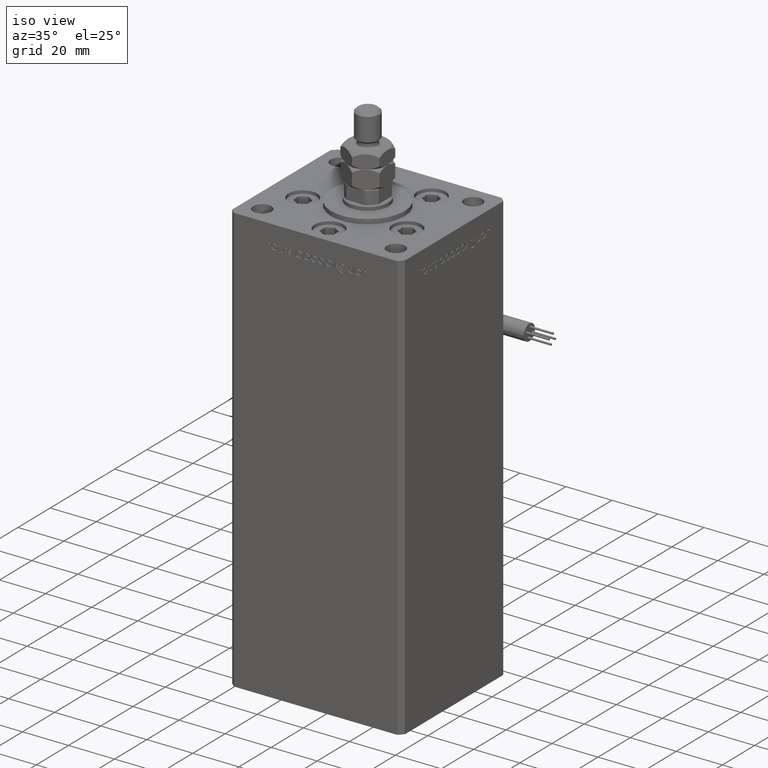
[diagram: clean part render]
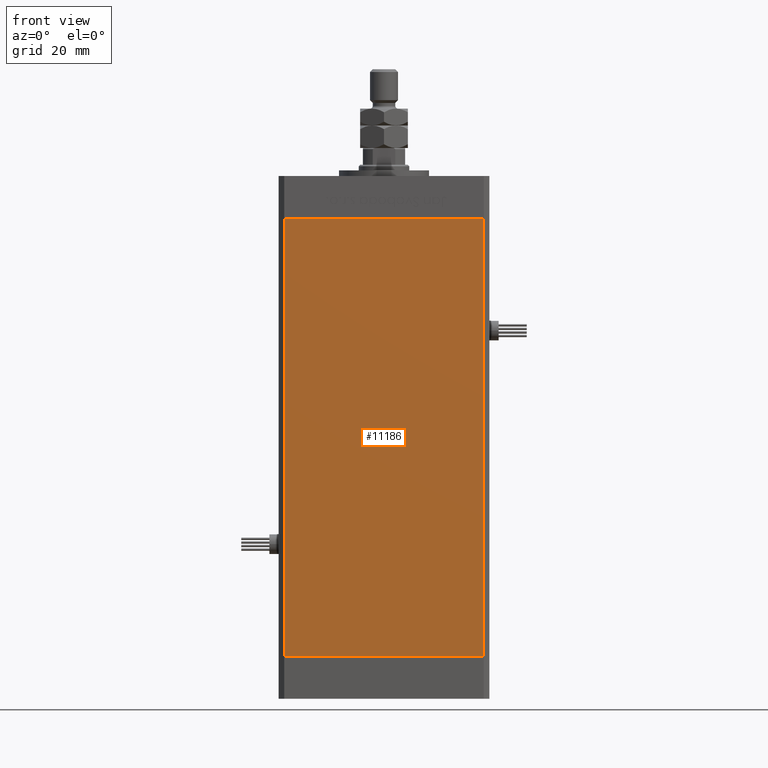
[diagram: tour spotlight — one face highlighted and labeled with its STEP entity id]
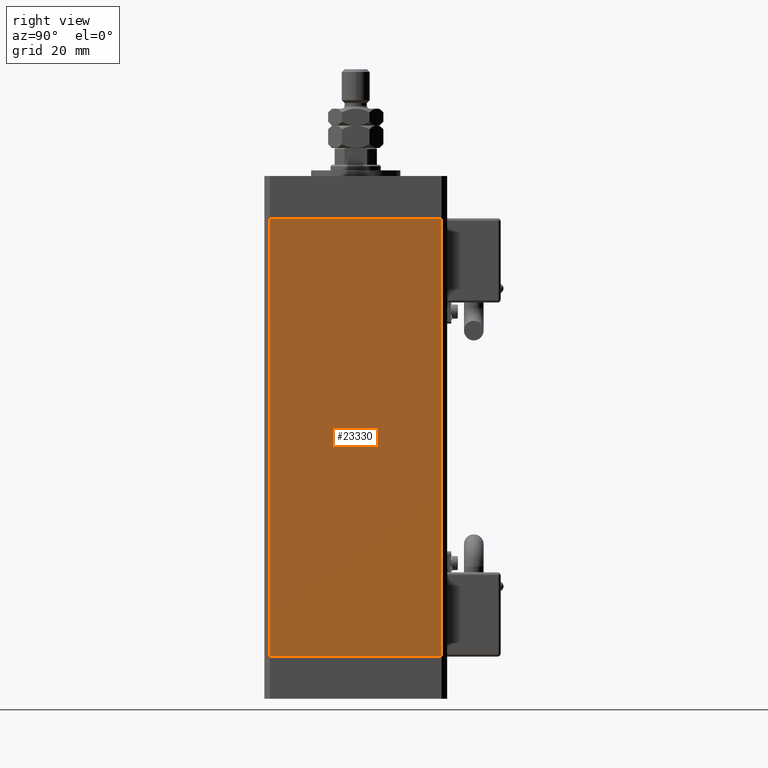
[diagram: tour spotlight — one face highlighted and labeled with its STEP entity id]
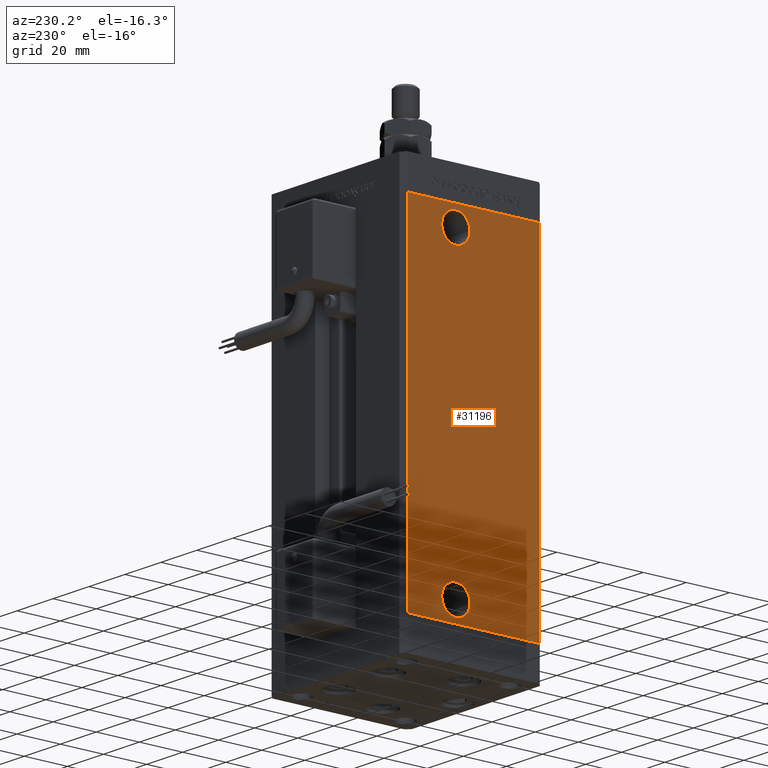
[diagram: tour spotlight — one face highlighted and labeled with its STEP entity id]
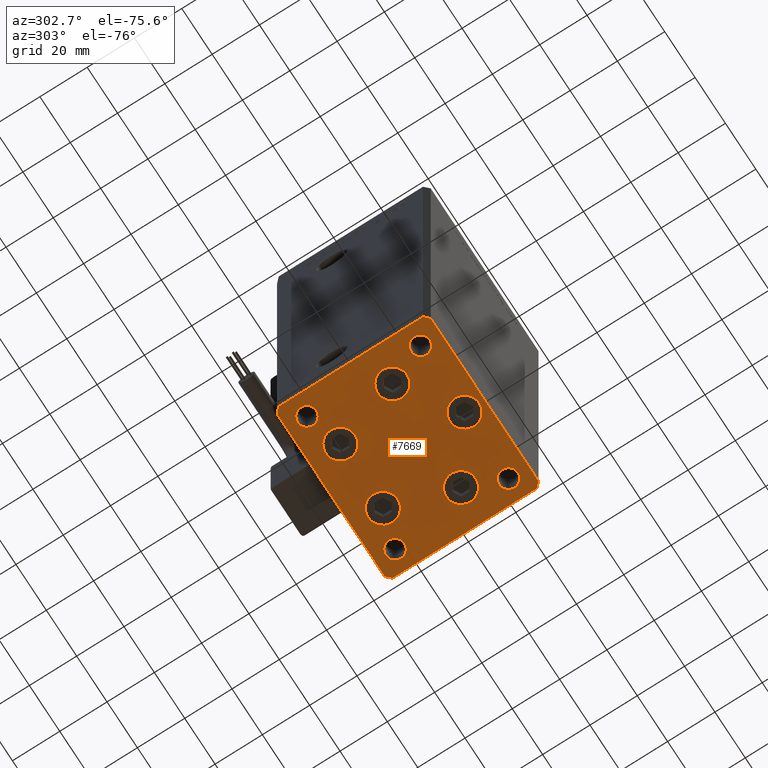
[diagram: tour spotlight — one face highlighted and labeled with its STEP entity id]
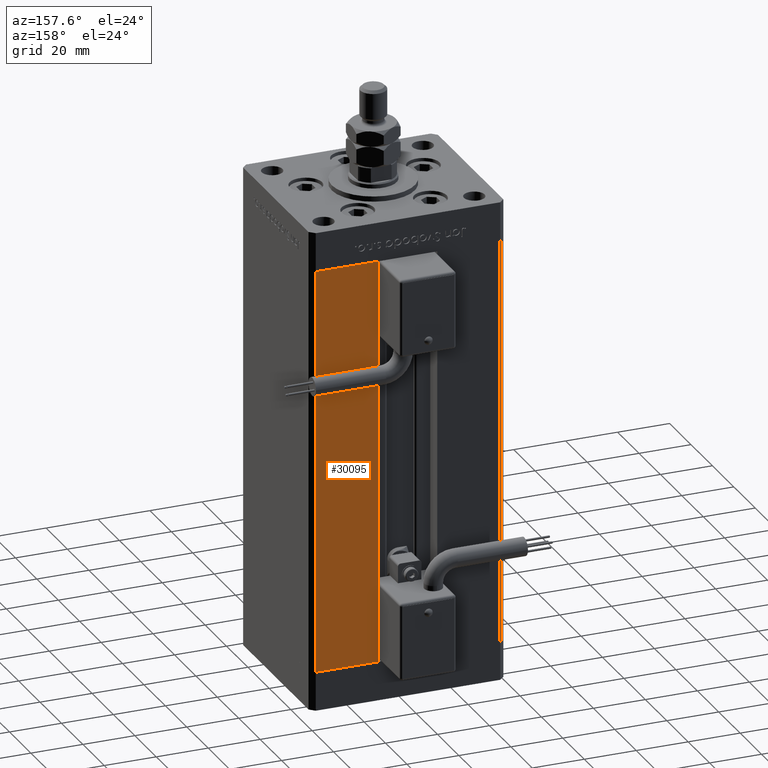
[diagram: tour spotlight — one face highlighted and labeled with its STEP entity id]
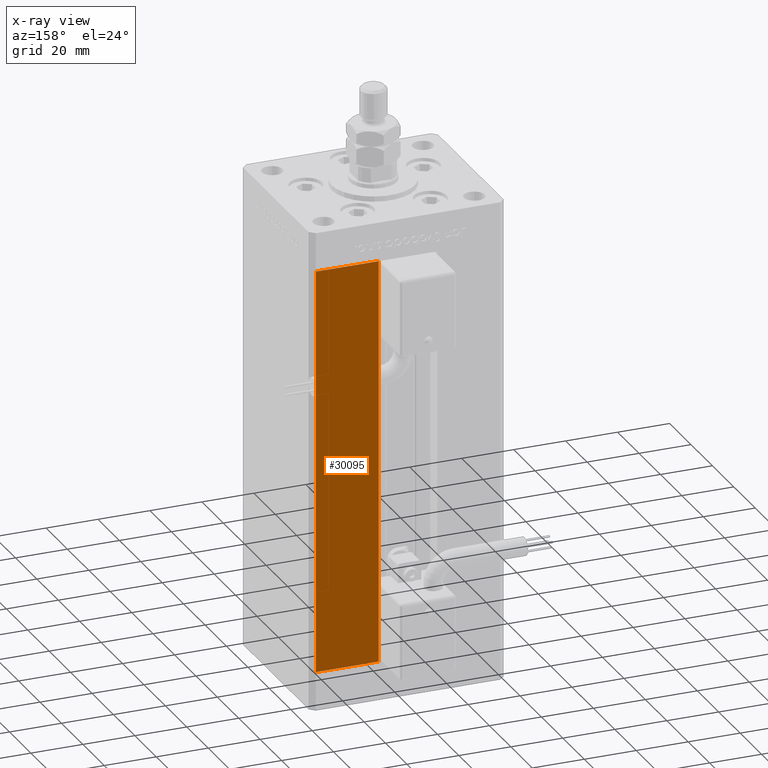
[diagram: x-ray of the same camera — body ghosted, this tour face saturated]
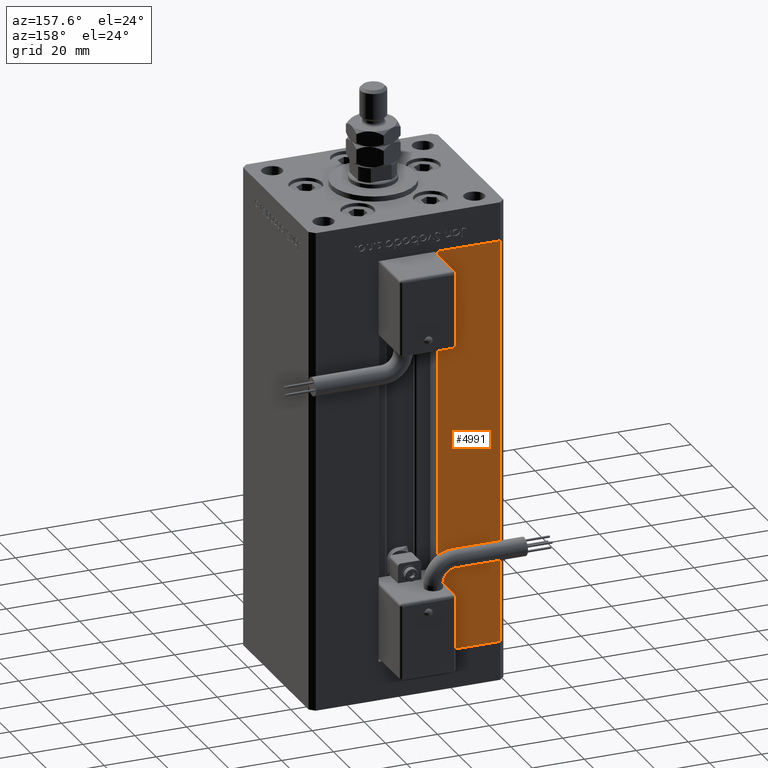
[diagram: tour spotlight — one face highlighted and labeled with its STEP entity id]
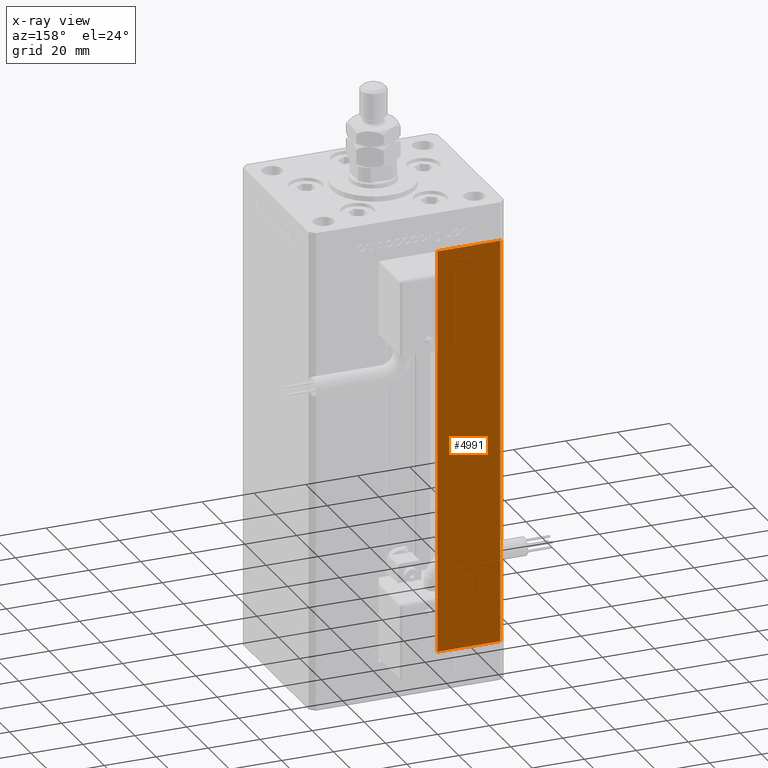
[diagram: x-ray of the same camera — body ghosted, this tour face saturated]
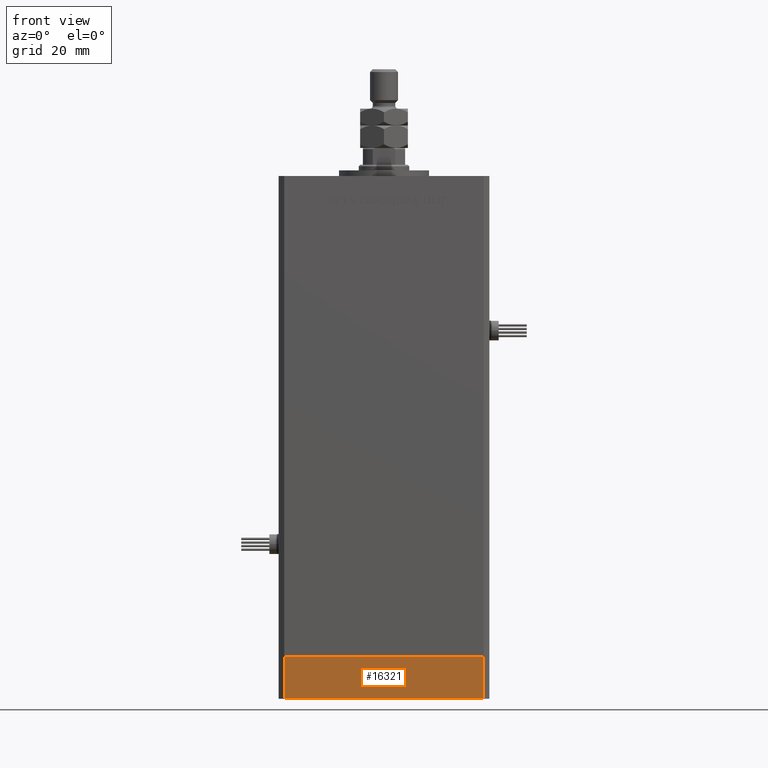
[diagram: tour spotlight — one face highlighted and labeled with its STEP entity id]
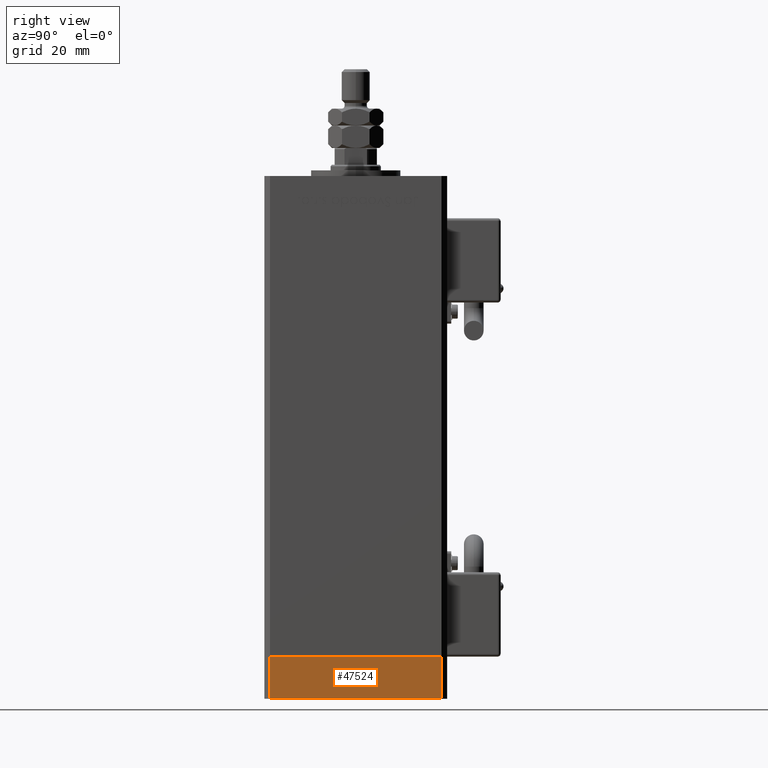
[diagram: tour spotlight — one face highlighted and labeled with its STEP entity id]
A machine part: a face-by-face anatomy tour. The part has 1436 B-rep faces; the first image is the clean iso view, then the 8 largest visible faces are spotlighted one at a time (largest first), each with its STEP entity span.

Face 1 — front view, entity #11186. In plain terms, the highlighted planar face has unit normal (0, 1, 0).
Definition (entity closure, byte-faithful):
#429 = VERTEX_POINT ( 'NONE', #12013 ) ;
#590 = PLANE ( 'NONE',  #22920 ) ;
#1198 = LINE ( 'NONE', #18722, #56778 ) ;
#4752 = DIRECTION ( 'NONE',  ( -0.000000000000000000, -0.000000000000000000, -1.000000000000000000 ) ) ;
#5762 = DIRECTION ( 'NONE',  ( 0.000000000000000000, -0.000000000000000000, 1.000000000000000000 ) ) ;
#5869 = VECTOR ( 'NONE', #11448, 1000.000000000000000 ) ;
#7815 = LINE ( 'NONE', #13252, #48460 ) ;
#11186 = ADVANCED_FACE ( 'NONE', ( #36196 ), #590, .F. ) ;
#11448 = DIRECTION ( 'NONE',  ( 1.000000000000000000, 0.000000000000000000, 0.000000000000000000 ) ) ;
#11451 = EDGE_LOOP ( 'NONE', ( #55361, #37061, #11911, #31844 ) ) ;
#11911 = ORIENTED_EDGE ( 'NONE', *, *, #24539, .F. ) ;
#12013 = CARTESIAN_POINT ( 'NONE',  ( -35.49999999999999289, -32.50000000000000000, 156.0000000000000000 ) ) ;
#12362 = CARTESIAN_POINT ( 'NONE',  ( 35.49999999999999289, -32.50000000000000000, 156.0000000000000000 ) ) ;
#13252 = CARTESIAN_POINT ( 'NONE',  ( -35.49999999999999289, -32.50000000000000000, 156.0000000000000000 ) ) ;
#13800 = CARTESIAN_POINT ( 'NONE',  ( -35.49999999999999289, -32.50000000000000000, 156.0000000000000000 ) ) ;
#14321 = VERTEX_POINT ( 'NONE', #36578 ) ;
#14348 = VERTEX_POINT ( 'NONE', #22811 ) ;
#14639 = EDGE_CURVE ( 'NONE', #14321, #14348, #1198, .T. ) ;
#16032 = CARTESIAN_POINT ( 'NONE',  ( -35.49999999999999289, -32.50000000000000000, 156.0000000000000000 ) ) ;
#18722 = CARTESIAN_POINT ( 'NONE',  ( -35.49999999999999289, -32.50000000000000000, 0.000000000000000000 ) ) ;
#22156 = DIRECTION ( 'NONE',  ( -0.000000000000000000, -0.000000000000000000, -1.000000000000000000 ) ) ;
#22742 = DIRECTION ( 'NONE',  ( 1.000000000000000000, 0.000000000000000000, 0.000000000000000000 ) ) ;
#22811 = CARTESIAN_POINT ( 'NONE',  ( 35.49999999999999289, -32.50000000000000000, 0.000000000000000000 ) ) ;
#22920 = AXIS2_PLACEMENT_3D ( 'NONE', #13800, #31322, #5762 ) ;
#24539 = EDGE_CURVE ( 'NONE', #429, #37645, #50755, .T. ) ;
#27229 = VECTOR ( 'NONE', #4752, 1000.000000000000000 ) ;
#31322 = DIRECTION ( 'NONE',  ( 0.000000000000000000, 1.000000000000000000, 0.000000000000000000 ) ) ;
#31844 = ORIENTED_EDGE ( 'NONE', *, *, #50758, .T. ) ;
#35735 = LINE ( 'NONE', #47810, #27229 ) ;
#36196 = FACE_OUTER_BOUND ( 'NONE', #11451, .T. ) ;
#36578 = CARTESIAN_POINT ( 'NONE',  ( -35.49999999999999289, -32.50000000000000000, 0.000000000000000000 ) ) ;
#37061 = ORIENTED_EDGE ( 'NONE', *, *, #48324, .F. ) ;
#37645 = VERTEX_POINT ( 'NONE', #12362 ) ;
#47810 = CARTESIAN_POINT ( 'NONE',  ( 35.49999999999999289, -32.50000000000000000, 156.0000000000000000 ) ) ;
#48324 = EDGE_CURVE ( 'NONE', #37645, #14348, #35735, .T. ) ;
#48460 = VECTOR ( 'NONE', #22156, 1000.000000000000000 ) ;
#50755 = LINE ( 'NONE', #16032, #5869 ) ;
#50758 = EDGE_CURVE ( 'NONE', #429, #14321, #7815, .T. ) ;
#55361 = ORIENTED_EDGE ( 'NONE', *, *, #14639, .T. ) ;
#56778 = VECTOR ( 'NONE', #22742, 1000.000000000000000 ) ;

Face 2 — right view, entity #23330. In plain terms, the highlighted planar face has unit normal (1, -0, 0).
Definition (entity closure, byte-faithful):
#76 = DIRECTION ( 'NONE',  ( 2.275047181608927644E-16, 1.000000000000000000, 0.000000000000000000 ) ) ;
#2645 = EDGE_CURVE ( 'NONE', #54825, #54986, #23394, .T. ) ;
#3247 = CARTESIAN_POINT ( 'NONE',  ( 37.50000000000000711, 30.50000000000000000, 156.0000000000000000 ) ) ;
#3537 = DIRECTION ( 'NONE',  ( 1.000000000000000000, -2.275047181608927644E-16, 0.000000000000000000 ) ) ;
#5111 = ORIENTED_EDGE ( 'NONE', *, *, #8133, .T. ) ;
#5362 = EDGE_CURVE ( 'NONE', #9115, #20351, #42670, .T. ) ;
#7980 = CARTESIAN_POINT ( 'NONE',  ( 37.50000000000000711, 30.50000000000000000, 156.0000000000000000 ) ) ;
#8133 = EDGE_CURVE ( 'NONE', #54986, #20351, #48835, .T. ) ;
#9115 = VERTEX_POINT ( 'NONE', #21034 ) ;
#9802 = CARTESIAN_POINT ( 'NONE',  ( 37.49999999999999289, -30.50000000000000000, 156.0000000000000000 ) ) ;
#9948 = CARTESIAN_POINT ( 'NONE',  ( 37.49999999999999289, -30.50000000000000000, 156.0000000000000000 ) ) ;
#13445 = ORIENTED_EDGE ( 'NONE', *, *, #21049, .F. ) ;
#13637 = DIRECTION ( 'NONE',  ( -2.275047181608927644E-16, -1.000000000000000000, 0.000000000000000000 ) ) ;
#17175 = CARTESIAN_POINT ( 'NONE',  ( 37.50000000000000711, 30.50000000000000000, 156.0000000000000000 ) ) ;
#17395 = CARTESIAN_POINT ( 'NONE',  ( 37.50000000000000711, 30.50000000000000000, 0.000000000000000000 ) ) ;
#18592 = ORIENTED_EDGE ( 'NONE', *, *, #2645, .T. ) ;
#20351 = VERTEX_POINT ( 'NONE', #39395 ) ;
#20485 = VECTOR ( 'NONE', #27032, 1000.000000000000000 ) ;
#21034 = CARTESIAN_POINT ( 'NONE',  ( 37.50000000000000711, 30.50000000000000000, 0.000000000000000000 ) ) ;
#21049 = EDGE_CURVE ( 'NONE', #54825, #9115, #51896, .T. ) ;
#22232 = VECTOR ( 'NONE', #13637, 1000.000000000000000 ) ;
#23330 = ADVANCED_FACE ( 'NONE', ( #39106 ), #25062, .T. ) ;
#23394 = LINE ( 'NONE', #27701, #22232 ) ;
#25062 = PLANE ( 'NONE',  #31440 ) ;
#27032 = DIRECTION ( 'NONE',  ( -0.000000000000000000, -0.000000000000000000, -1.000000000000000000 ) ) ;
#27701 = CARTESIAN_POINT ( 'NONE',  ( 37.50000000000000711, 30.50000000000000000, 156.0000000000000000 ) ) ;
#28932 = ORIENTED_EDGE ( 'NONE', *, *, #5362, .F. ) ;
#29323 = EDGE_LOOP ( 'NONE', ( #28932, #13445, #18592, #5111 ) ) ;
#30383 = DIRECTION ( 'NONE',  ( -0.000000000000000000, -0.000000000000000000, -1.000000000000000000 ) ) ;
#31440 = AXIS2_PLACEMENT_3D ( 'NONE', #3247, #3537, #76 ) ;
#34630 = DIRECTION ( 'NONE',  ( -2.275047181608927644E-16, -1.000000000000000000, 0.000000000000000000 ) ) ;
#39106 = FACE_OUTER_BOUND ( 'NONE', #29323, .T. ) ;
#39395 = CARTESIAN_POINT ( 'NONE',  ( 37.49999999999999289, -30.50000000000000000, 0.000000000000000000 ) ) ;
#42670 = LINE ( 'NONE', #17395, #54269 ) ;
#48835 = LINE ( 'NONE', #9802, #20485 ) ;
#49749 = VECTOR ( 'NONE', #30383, 1000.000000000000000 ) ;
#51896 = LINE ( 'NONE', #17175, #49749 ) ;
#54269 = VECTOR ( 'NONE', #34630, 1000.000000000000000 ) ;
#54825 = VERTEX_POINT ( 'NONE', #7980 ) ;
#54986 = VERTEX_POINT ( 'NONE', #9948 ) ;

Face 3 — auxiliary view, entity #31196. In plain terms, the highlighted planar face has unit normal (1, 0, 0).
Definition (entity closure, byte-faithful):
#1342 = AXIS2_PLACEMENT_3D ( 'NONE', #7660, #20292, #11397 ) ;
#1811 = VECTOR ( 'NONE', #29463, 1000.000000000000000 ) ;
#1994 = CARTESIAN_POINT ( 'NONE',  ( -37.50000000000000711, 30.50000000000000000, 0.000000000000000000 ) ) ;
#2286 = VERTEX_POINT ( 'NONE', #4544 ) ;
#2724 = AXIS2_PLACEMENT_3D ( 'NONE', #45016, #24064, #10858 ) ;
#2805 = AXIS2_PLACEMENT_3D ( 'NONE', #10754, #54642, #29111 ) ;
#3411 = ORIENTED_EDGE ( 'NONE', *, *, #52210, .F. ) ;
#3898 = EDGE_CURVE ( 'NONE', #24339, #4412, #52531, .T. ) ;
#4412 = VERTEX_POINT ( 'NONE', #8502 ) ;
#4544 = CARTESIAN_POINT ( 'NONE',  ( -37.49999999999999289, -30.50000000000000000, 156.0000000000000000 ) ) ;
#6637 = DIRECTION ( 'NONE',  ( -1.000000000000000000, -2.275047181608927644E-16, 0.000000000000000000 ) ) ;
#6799 = FACE_BOUND ( 'NONE', #8057, .T. ) ;
#7542 = LINE ( 'NONE', #47154, #29282 ) ;
#7660 = CARTESIAN_POINT ( 'NONE',  ( -37.50000000000000711, 30.50000000000000000, 156.0000000000000000 ) ) ;
#8057 = EDGE_LOOP ( 'NONE', ( #15413, #42565 ) ) ;
#8502 = CARTESIAN_POINT ( 'NONE',  ( -37.50000000000000000, 14.57999999999999652, 9.000000000000000000 ) ) ;
#9656 = CARTESIAN_POINT ( 'NONE',  ( -37.49999999999999289, -30.50000000000000000, 156.0000000000000000 ) ) ;
#9727 = VERTEX_POINT ( 'NONE', #47288 ) ;
#10385 = DIRECTION ( 'NONE',  ( 0.000000000000000000, -1.000000000000000000, 0.000000000000000000 ) ) ;
#10569 = ORIENTED_EDGE ( 'NONE', *, *, #3898, .F. ) ;
#10754 = CARTESIAN_POINT ( 'NONE',  ( -37.50000000000000000, 7.999999999999991118, 9.000000000000000000 ) ) ;
#10858 = DIRECTION ( 'NONE',  ( 0.000000000000000000, -1.000000000000000000, 0.000000000000000000 ) ) ;
#11217 = EDGE_CURVE ( 'NONE', #9727, #2286, #13524, .T. ) ;
#11397 = DIRECTION ( 'NONE',  ( -2.275047181608927644E-16, 1.000000000000000000, 0.000000000000000000 ) ) ;
#11631 = VERTEX_POINT ( 'NONE', #1994 ) ;
#12260 = PLANE ( 'NONE',  #1342 ) ;
#12263 = EDGE_CURVE ( 'NONE', #4412, #24339, #38539, .T. ) ;
#13524 = LINE ( 'NONE', #31044, #41223 ) ;
#13607 = ORIENTED_EDGE ( 'NONE', *, *, #15433, .T. ) ;
#14094 = CARTESIAN_POINT ( 'NONE',  ( -37.50000000000000000, 1.419999999999975948, 147.0000000000000000 ) ) ;
#15413 = ORIENTED_EDGE ( 'NONE', *, *, #29044, .F. ) ;
#15433 = EDGE_CURVE ( 'NONE', #9727, #11631, #33776, .T. ) ;
#16369 = EDGE_LOOP ( 'NONE', ( #10569, #45667 ) ) ;
#16899 = VERTEX_POINT ( 'NONE', #26696 ) ;
#18259 = VECTOR ( 'NONE', #44102, 1000.000000000000000 ) ;
#18603 = AXIS2_PLACEMENT_3D ( 'NONE', #48241, #51688, #38207 ) ;
#19164 = ORIENTED_EDGE ( 'NONE', *, *, #54253, .T. ) ;
#20292 = DIRECTION ( 'NONE',  ( 1.000000000000000000, 2.275047181608927644E-16, -0.000000000000000000 ) ) ;
#23898 = EDGE_LOOP ( 'NONE', ( #19164, #3411, #41750, #13607 ) ) ;
#24064 = DIRECTION ( 'NONE',  ( -1.000000000000000000, -2.275047181608927644E-16, 0.000000000000000000 ) ) ;
#24339 = VERTEX_POINT ( 'NONE', #45672 ) ;
#26696 = CARTESIAN_POINT ( 'NONE',  ( -37.49999999999999289, -30.50000000000000000, 0.000000000000000000 ) ) ;
#26733 = DIRECTION ( 'NONE',  ( 2.275047181608927644E-16, -1.000000000000000000, 0.000000000000000000 ) ) ;
#29044 = EDGE_CURVE ( 'NONE', #36775, #31861, #41579, .T. ) ;
#29111 = DIRECTION ( 'NONE',  ( 0.000000000000000000, -1.000000000000000000, 0.000000000000000000 ) ) ;
#29188 = FACE_OUTER_BOUND ( 'NONE', #23898, .T. ) ;
#29282 = VECTOR ( 'NONE', #51733, 1000.000000000000000 ) ;
#29463 = DIRECTION ( 'NONE',  ( -0.000000000000000000, -0.000000000000000000, -1.000000000000000000 ) ) ;
#31044 = CARTESIAN_POINT ( 'NONE',  ( -37.50000000000000711, 30.50000000000000000, 156.0000000000000000 ) ) ;
#31196 = ADVANCED_FACE ( 'NONE', ( #51561, #6799, #29188 ), #12260, .F. ) ;
#31861 = VERTEX_POINT ( 'NONE', #42478 ) ;
#32505 = AXIS2_PLACEMENT_3D ( 'NONE', #54274, #6637, #10385 ) ;
#33776 = LINE ( 'NONE', #51255, #1811 ) ;
#36775 = VERTEX_POINT ( 'NONE', #14094 ) ;
#38207 = DIRECTION ( 'NONE',  ( 0.000000000000000000, -1.000000000000000000, 0.000000000000000000 ) ) ;
#38539 = CIRCLE ( 'NONE', #2805, 6.580000000000003624 ) ;
#39789 = LINE ( 'NONE', #9656, #18259 ) ;
#41223 = VECTOR ( 'NONE', #26733, 1000.000000000000000 ) ;
#41579 = CIRCLE ( 'NONE', #32505, 6.580000000000015170 ) ;
#41750 = ORIENTED_EDGE ( 'NONE', *, *, #11217, .F. ) ;
#42478 = CARTESIAN_POINT ( 'NONE',  ( -37.50000000000000000, 14.58000000000000718, 147.0000000000000000 ) ) ;
#42565 = ORIENTED_EDGE ( 'NONE', *, *, #54684, .F. ) ;
#44102 = DIRECTION ( 'NONE',  ( -0.000000000000000000, -0.000000000000000000, -1.000000000000000000 ) ) ;
#45016 = CARTESIAN_POINT ( 'NONE',  ( -37.50000000000000000, 7.999999999999991118, 147.0000000000000000 ) ) ;
#45667 = ORIENTED_EDGE ( 'NONE', *, *, #12263, .F. ) ;
#45672 = CARTESIAN_POINT ( 'NONE',  ( -37.50000000000000000, 1.419999999999988161, 9.000000000000000000 ) ) ;
#47154 = CARTESIAN_POINT ( 'NONE',  ( -37.50000000000000711, 30.50000000000000000, 0.000000000000000000 ) ) ;
#47288 = CARTESIAN_POINT ( 'NONE',  ( -37.50000000000000711, 30.50000000000000000, 156.0000000000000000 ) ) ;
#48241 = CARTESIAN_POINT ( 'NONE',  ( -37.50000000000000000, 7.999999999999991118, 9.000000000000000000 ) ) ;
#51255 = CARTESIAN_POINT ( 'NONE',  ( -37.50000000000000711, 30.50000000000000000, 156.0000000000000000 ) ) ;
#51561 = FACE_BOUND ( 'NONE', #16369, .T. ) ;
#51688 = DIRECTION ( 'NONE',  ( -1.000000000000000000, -2.275047181608927644E-16, 0.000000000000000000 ) ) ;
#51733 = DIRECTION ( 'NONE',  ( 2.275047181608927644E-16, -1.000000000000000000, 0.000000000000000000 ) ) ;
#52210 = EDGE_CURVE ( 'NONE', #2286, #16899, #39789, .T. ) ;
#52531 = CIRCLE ( 'NONE', #18603, 6.580000000000003624 ) ;
#54253 = EDGE_CURVE ( 'NONE', #11631, #16899, #7542, .T. ) ;
#54274 = CARTESIAN_POINT ( 'NONE',  ( -37.50000000000000000, 7.999999999999991118, 147.0000000000000000 ) ) ;
#54642 = DIRECTION ( 'NONE',  ( -1.000000000000000000, -2.275047181608927644E-16, 0.000000000000000000 ) ) ;
#54684 = EDGE_CURVE ( 'NONE', #31861, #36775, #54975, .T. ) ;
#54975 = CIRCLE ( 'NONE', #2724, 6.580000000000015170 ) ;

Face 4 — auxiliary view, entity #7669. In plain terms, the highlighted planar face has unit normal (0, 0, -1).
Definition (entity closure, byte-faithful):
#242 = DIRECTION ( 'NONE',  ( 1.000000000000000000, 0.000000000000000000, 0.000000000000000000 ) ) ;
#556 = CIRCLE ( 'NONE', #50954, 4.000000000000003553 ) ;
#670 = AXIS2_PLACEMENT_3D ( 'NONE', #50111, #18847, #40655 ) ;
#685 = EDGE_CURVE ( 'NONE', #6928, #48066, #36803, .T. ) ;
#746 = CARTESIAN_POINT ( 'NONE',  ( 28.87741699796952233, -8.000000000000000000, 0.000000000000000000 ) ) ;
#857 = AXIS2_PLACEMENT_3D ( 'NONE', #29980, #34572, #30270 ) ;
#1623 = VERTEX_POINT ( 'NONE', #8771 ) ;
#1645 = DIRECTION ( 'NONE',  ( 1.000000000000000000, 9.773090005503140331E-17, 0.000000000000000000 ) ) ;
#2669 = ORIENTED_EDGE ( 'NONE', *, *, #53335, .T. ) ;
#2683 = CARTESIAN_POINT ( 'NONE',  ( 7.741068579633223479, 19.50000000000000000, 0.000000000000000000 ) ) ;
#2940 = LINE ( 'NONE', #28494, #49343 ) ;
#3102 = EDGE_LOOP ( 'NONE', ( #55472, #13795 ) ) ;
#3371 = FACE_BOUND ( 'NONE', #43838, .T. ) ;
#3637 = CIRCLE ( 'NONE', #47643, 4.000000000000003553 ) ;
#3657 = FACE_BOUND ( 'NONE', #48720, .T. ) ;
#3715 = VECTOR ( 'NONE', #36107, 1000.000000000000000 ) ;
#3948 = FACE_BOUND ( 'NONE', #16391, .T. ) ;
#4215 = CARTESIAN_POINT ( 'NONE',  ( 25.00000000000000711, 24.00000000000000711, 0.000000000000000000 ) ) ;
#4333 = VERTEX_POINT ( 'NONE', #6781 ) ;
#4588 = EDGE_LOOP ( 'NONE', ( #54042, #54401 ) ) ;
#4715 = VERTEX_POINT ( 'NONE', #47687 ) ;
#4910 = DIRECTION ( 'NONE',  ( 0.000000000000000000, -0.000000000000000000, -1.000000000000000000 ) ) ;
#4960 = CARTESIAN_POINT ( 'NONE',  ( 2.939152317953647500E-15, -24.00000000000000000, 0.000000000000000000 ) ) ;
#5390 = CARTESIAN_POINT ( 'NONE',  ( -35.49999999999998579, -32.50000000000001421, 0.000000000000000000 ) ) ;
#5973 = DIRECTION ( 'NONE',  ( 0.7071067811865474617, -0.7071067811865474617, 0.000000000000000000 ) ) ;
#5999 = DIRECTION ( 'NONE',  ( 1.000000000000000000, 0.000000000000000000, 0.000000000000000000 ) ) ;
#6049 = DIRECTION ( 'NONE',  ( 0.000000000000000000, -0.000000000000000000, -1.000000000000000000 ) ) ;
#6663 = EDGE_LOOP ( 'NONE', ( #43393, #53488, #34534, #7925, #48180, #19809, #43941, #23532 ) ) ;
#6781 = CARTESIAN_POINT ( 'NONE',  ( 33.00000000000001421, 24.00000000000000711, 0.000000000000000000 ) ) ;
#6928 = VERTEX_POINT ( 'NONE', #34792 ) ;
#7345 = AXIS2_PLACEMENT_3D ( 'NONE', #10261, #10823, #27481 ) ;
#7457 = LINE ( 'NONE', #20376, #26581 ) ;
#7669 = ADVANCED_FACE ( 'NONE', ( #26600, #3371, #7963, #43264, #12831, #3948, #47849, #3657, #30636, #21465 ), #8536, .T. ) ;
#7839 = CIRCLE ( 'NONE', #20667, 4.000000000000000000 ) ;
#7925 = ORIENTED_EDGE ( 'NONE', *, *, #33905, .T. ) ;
#7963 = FACE_BOUND ( 'NONE', #3102, .T. ) ;
#8295 = DIRECTION ( 'NONE',  ( 1.000000000000000000, 0.000000000000000000, 0.000000000000000000 ) ) ;
#8536 = PLANE ( 'NONE',  #48869 ) ;
#8630 = AXIS2_PLACEMENT_3D ( 'NONE', #33909, #51392, #55975 ) ;
#8771 = CARTESIAN_POINT ( 'NONE',  ( -7.741068579633227031, 19.49999999999999645, 0.000000000000000000 ) ) ;
#8860 = CIRCLE ( 'NONE', #24416, 6.250000000000000000 ) ;
#8888 = CIRCLE ( 'NONE', #16212, 6.250000000000001776 ) ;
#9710 = DIRECTION ( 'NONE',  ( 1.000000000000000000, 0.000000000000000000, 0.000000000000000000 ) ) ;
#9750 = CARTESIAN_POINT ( 'NONE',  ( -35.50000000000002842, 32.49999999999999289, 0.000000000000000000 ) ) ;
#10051 = CARTESIAN_POINT ( 'NONE',  ( -25.00000000000001066, -23.99999999999999289, 0.000000000000000000 ) ) ;
#10054 = AXIS2_PLACEMENT_3D ( 'NONE', #53399, #44512, #49670 ) ;
#10261 = CARTESIAN_POINT ( 'NONE',  ( -22.62741699796951877, -8.000000000000005329, 0.000000000000000000 ) ) ;
#10823 = DIRECTION ( 'NONE',  ( 0.000000000000000000, -0.000000000000000000, -1.000000000000000000 ) ) ;
#11878 = EDGE_CURVE ( 'NONE', #4715, #1623, #51349, .T. ) ;
#11910 = EDGE_CURVE ( 'NONE', #31978, #28876, #29358, .T. ) ;
#12068 = AXIS2_PLACEMENT_3D ( 'NONE', #4960, #34538, #30799 ) ;
#12819 = ORIENTED_EDGE ( 'NONE', *, *, #33737, .T. ) ;
#12831 = FACE_BOUND ( 'NONE', #18688, .T. ) ;
#12911 = CARTESIAN_POINT ( 'NONE',  ( -33.00000000000000711, -23.99999999999999289, 0.000000000000000000 ) ) ;
#13242 = VERTEX_POINT ( 'NONE', #45494 ) ;
#13324 = CARTESIAN_POINT ( 'NONE',  ( 16.37741699796951877, -8.000000000000000000, 0.000000000000000000 ) ) ;
#13372 = EDGE_CURVE ( 'NONE', #28876, #31978, #15533, .T. ) ;
#13389 = VERTEX_POINT ( 'NONE', #13324 ) ;
#13612 = ORIENTED_EDGE ( 'NONE', *, *, #34382, .F. ) ;
#13795 = ORIENTED_EDGE ( 'NONE', *, *, #46443, .T. ) ;
#13828 = EDGE_CURVE ( 'NONE', #1623, #4715, #32959, .T. ) ;
#14004 = CARTESIAN_POINT ( 'NONE',  ( 22.62741699796951877, -8.000000000000000000, 0.000000000000000000 ) ) ;
#14167 = CARTESIAN_POINT ( 'NONE',  ( -35.50000000000002842, 32.49999999999999289, 0.000000000000000000 ) ) ;
#14215 = CARTESIAN_POINT ( 'NONE',  ( -25.00000000000001421, 24.00000000000000711, 0.000000000000000000 ) ) ;
#14292 = CARTESIAN_POINT ( 'NONE',  ( -37.49999999999998579, -30.50000000000001421, 0.000000000000000000 ) ) ;
#14312 = CARTESIAN_POINT ( 'NONE',  ( 35.50000000000000711, -32.50000000000000711, 0.000000000000000000 ) ) ;
#14396 = VERTEX_POINT ( 'NONE', #2683 ) ;
#14576 = DIRECTION ( 'NONE',  ( 0.000000000000000000, -0.000000000000000000, -1.000000000000000000 ) ) ;
#14624 = CARTESIAN_POINT ( 'NONE',  ( -6.249999999999997335, -24.00000000000000000, 0.000000000000000000 ) ) ;
#14707 = EDGE_CURVE ( 'NONE', #34526, #37215, #33632, .T. ) ;
#14929 = ORIENTED_EDGE ( 'NONE', *, *, #13828, .T. ) ;
#14973 = DIRECTION ( 'NONE',  ( -1.000000000000000000, -1.954618001100629052E-16, 0.000000000000000000 ) ) ;
#15331 = DIRECTION ( 'NONE',  ( 1.000000000000000000, 0.000000000000000000, 0.000000000000000000 ) ) ;
#15489 = DIRECTION ( 'NONE',  ( -0.7071067811865482389, 0.7071067811865469066, 0.000000000000000000 ) ) ;
#15533 = CIRCLE ( 'NONE', #857, 6.250000000000001776 ) ;
#15759 = ORIENTED_EDGE ( 'NONE', *, *, #11910, .T. ) ;
#15818 = DIRECTION ( 'NONE',  ( -0.000000000000000000, 0.000000000000000000, 1.000000000000000000 ) ) ;
#15898 = CIRCLE ( 'NONE', #56215, 4.000000000000003553 ) ;
#16109 = EDGE_CURVE ( 'NONE', #36525, #21681, #18305, .T. ) ;
#16212 = AXIS2_PLACEMENT_3D ( 'NONE', #36484, #6049, #53968 ) ;
#16391 = EDGE_LOOP ( 'NONE', ( #13612, #23694 ) ) ;
#16536 = VERTEX_POINT ( 'NONE', #23966 ) ;
#16810 = AXIS2_PLACEMENT_3D ( 'NONE', #22041, #22591, #21763 ) ;
#16910 = DIRECTION ( 'NONE',  ( -1.478780668045802821E-15, 1.000000000000000000, 0.000000000000000000 ) ) ;
#18174 = VECTOR ( 'NONE', #1645, 1000.000000000000000 ) ;
#18305 = LINE ( 'NONE', #18593, #3715 ) ;
#18593 = CARTESIAN_POINT ( 'NONE',  ( -37.50000000000001421, 30.49999999999998579, 0.000000000000000000 ) ) ;
#18688 = EDGE_LOOP ( 'NONE', ( #15759, #41124 ) ) ;
#18847 = DIRECTION ( 'NONE',  ( -0.000000000000000000, 0.000000000000000000, 1.000000000000000000 ) ) ;
#19111 = VERTEX_POINT ( 'NONE', #34777 ) ;
#19757 = CARTESIAN_POINT ( 'NONE',  ( 29.00000000000001066, -23.99999999999999289, 0.000000000000000000 ) ) ;
#19809 = ORIENTED_EDGE ( 'NONE', *, *, #14707, .T. ) ;
#19875 = CARTESIAN_POINT ( 'NONE',  ( -37.50000000000001421, 30.49999999999998579, 0.000000000000000000 ) ) ;
#20020 = VECTOR ( 'NONE', #5973, 1000.000000000000114 ) ;
#20122 = CARTESIAN_POINT ( 'NONE',  ( 29.00000000000001066, 24.00000000000000711, 0.000000000000000000 ) ) ;
#20376 = CARTESIAN_POINT ( 'NONE',  ( 37.49999999999992184, 30.50000000000001066, 0.000000000000000000 ) ) ;
#20589 = DIRECTION ( 'NONE',  ( 1.000000000000000000, 0.000000000000000000, 0.000000000000000000 ) ) ;
#20667 = AXIS2_PLACEMENT_3D ( 'NONE', #36123, #14576, #9710 ) ;
#20958 = EDGE_CURVE ( 'NONE', #37215, #36525, #27830, .T. ) ;
#21465 = FACE_BOUND ( 'NONE', #4588, .T. ) ;
#21510 = CARTESIAN_POINT ( 'NONE',  ( -13.99106857963322703, 19.49999999999999645, 0.000000000000000000 ) ) ;
#21681 = VERTEX_POINT ( 'NONE', #45338 ) ;
#21734 = CIRCLE ( 'NONE', #54714, 3.999999999999996447 ) ;
#21763 = DIRECTION ( 'NONE',  ( 1.000000000000000000, 0.000000000000000000, 0.000000000000000000 ) ) ;
#21789 = DIRECTION ( 'NONE',  ( 0.000000000000000000, -0.000000000000000000, -1.000000000000000000 ) ) ;
#22041 = CARTESIAN_POINT ( 'NONE',  ( -29.00000000000001066, -23.99999999999999289, 0.000000000000000000 ) ) ;
#22591 = DIRECTION ( 'NONE',  ( 0.000000000000000000, -0.000000000000000000, -1.000000000000000000 ) ) ;
#22836 = VERTEX_POINT ( 'NONE', #14312 ) ;
#23532 = ORIENTED_EDGE ( 'NONE', *, *, #16109, .T. ) ;
#23694 = ORIENTED_EDGE ( 'NONE', *, *, #29106, .F. ) ;
#23756 = EDGE_CURVE ( 'NONE', #25592, #13242, #15898, .T. ) ;
#23966 = CARTESIAN_POINT ( 'NONE',  ( 37.50000000000001421, -30.50000000000000711, 0.000000000000000000 ) ) ;
#23994 = EDGE_CURVE ( 'NONE', #53919, #49273, #25998, .T. ) ;
#24024 = CARTESIAN_POINT ( 'NONE',  ( 20.24106857963322526, 19.50000000000000000, 0.000000000000000000 ) ) ;
#24416 = AXIS2_PLACEMENT_3D ( 'NONE', #24889, #42394, #20589 ) ;
#24463 = EDGE_CURVE ( 'NONE', #48066, #6928, #35179, .T. ) ;
#24718 = CARTESIAN_POINT ( 'NONE',  ( 35.49999999999992184, 32.50000000000000711, 0.000000000000000000 ) ) ;
#24764 = AXIS2_PLACEMENT_3D ( 'NONE', #21510, #21789, #8295 ) ;
#24889 = CARTESIAN_POINT ( 'NONE',  ( 13.99106857963322348, 19.50000000000000000, 0.000000000000000000 ) ) ;
#25170 = EDGE_LOOP ( 'NONE', ( #33114, #46923 ) ) ;
#25340 = VECTOR ( 'NONE', #16910, 1000.000000000000000 ) ;
#25592 = VERTEX_POINT ( 'NONE', #33767 ) ;
#25998 = CIRCLE ( 'NONE', #16810, 4.000000000000000000 ) ;
#26047 = DIRECTION ( 'NONE',  ( -0.000000000000000000, 0.000000000000000000, 1.000000000000000000 ) ) ;
#26581 = VECTOR ( 'NONE', #15489, 999.9999999999998863 ) ;
#26600 = FACE_BOUND ( 'NONE', #41473, .T. ) ;
#26865 = VERTEX_POINT ( 'NONE', #24024 ) ;
#27122 = AXIS2_PLACEMENT_3D ( 'NONE', #14004, #39838, #242 ) ;
#27255 = DIRECTION ( 'NONE',  ( -0.7071067811865426878, -0.7071067811865524577, 0.000000000000000000 ) ) ;
#27481 = DIRECTION ( 'NONE',  ( 1.000000000000000000, 0.000000000000000000, 0.000000000000000000 ) ) ;
#27830 = LINE ( 'NONE', #9750, #39631 ) ;
#28265 = DIRECTION ( 'NONE',  ( -0.000000000000000000, 0.000000000000000000, 1.000000000000000000 ) ) ;
#28494 = CARTESIAN_POINT ( 'NONE',  ( 35.50000000000000711, -32.50000000000000711, 0.000000000000000000 ) ) ;
#28876 = VERTEX_POINT ( 'NONE', #38833 ) ;
#29106 = EDGE_CURVE ( 'NONE', #35066, #4333, #38886, .T. ) ;
#29125 = DIRECTION ( 'NONE',  ( 1.000000000000000000, 0.000000000000000000, 0.000000000000000000 ) ) ;
#29358 = CIRCLE ( 'NONE', #7345, 6.250000000000001776 ) ;
#29928 = AXIS2_PLACEMENT_3D ( 'NONE', #44216, #4910, #49356 ) ;
#29980 = CARTESIAN_POINT ( 'NONE',  ( -22.62741699796951877, -8.000000000000005329, 0.000000000000000000 ) ) ;
#30159 = VERTEX_POINT ( 'NONE', #38493 ) ;
#30270 = DIRECTION ( 'NONE',  ( 1.000000000000000000, 0.000000000000000000, 0.000000000000000000 ) ) ;
#30636 = FACE_OUTER_BOUND ( 'NONE', #6663, .T. ) ;
#30799 = DIRECTION ( 'NONE',  ( 1.000000000000000000, 0.000000000000000000, 0.000000000000000000 ) ) ;
#31067 = CARTESIAN_POINT ( 'NONE',  ( -35.49999999999998579, -32.50000000000001421, 0.000000000000000000 ) ) ;
#31919 = EDGE_CURVE ( 'NONE', #49273, #53919, #7839, .T. ) ;
#31978 = VERTEX_POINT ( 'NONE', #44713 ) ;
#32018 = CARTESIAN_POINT ( 'NONE',  ( 29.00000000000001066, 24.00000000000000711, 0.000000000000000000 ) ) ;
#32807 = DIRECTION ( 'NONE',  ( 1.000000000000000000, 0.000000000000000000, 0.000000000000000000 ) ) ;
#32959 = CIRCLE ( 'NONE', #10054, 6.250000000000000000 ) ;
#33114 = ORIENTED_EDGE ( 'NONE', *, *, #24463, .T. ) ;
#33632 = LINE ( 'NONE', #24718, #53144 ) ;
#33683 = ORIENTED_EDGE ( 'NONE', *, *, #11878, .T. ) ;
#33728 = CARTESIAN_POINT ( 'NONE',  ( -29.00000000000001066, 24.00000000000000711, 0.000000000000000000 ) ) ;
#33737 = EDGE_CURVE ( 'NONE', #26865, #14396, #37244, .T. ) ;
#33767 = CARTESIAN_POINT ( 'NONE',  ( 25.00000000000000711, -23.99999999999999289, 0.000000000000000000 ) ) ;
#33905 = EDGE_CURVE ( 'NONE', #16536, #30159, #52191, .T. ) ;
#33909 = CARTESIAN_POINT ( 'NONE',  ( 2.939152317953647500E-15, -24.00000000000000000, 0.000000000000000000 ) ) ;
#34382 = EDGE_CURVE ( 'NONE', #4333, #35066, #556, .T. ) ;
#34526 = VERTEX_POINT ( 'NONE', #45061 ) ;
#34534 = ORIENTED_EDGE ( 'NONE', *, *, #51506, .T. ) ;
#34538 = DIRECTION ( 'NONE',  ( 0.000000000000000000, -0.000000000000000000, -1.000000000000000000 ) ) ;
#34572 = DIRECTION ( 'NONE',  ( 0.000000000000000000, -0.000000000000000000, -1.000000000000000000 ) ) ;
#34777 = CARTESIAN_POINT ( 'NONE',  ( -33.00000000000000711, 24.00000000000000711, 0.000000000000000000 ) ) ;
#34792 = CARTESIAN_POINT ( 'NONE',  ( 6.250000000000002665, -24.00000000000000000, 0.000000000000000000 ) ) ;
#34958 = EDGE_CURVE ( 'NONE', #13389, #52215, #51868, .T. ) ;
#35066 = VERTEX_POINT ( 'NONE', #4215 ) ;
#35105 = EDGE_CURVE ( 'NONE', #14396, #26865, #8860, .T. ) ;
#35179 = CIRCLE ( 'NONE', #8630, 6.250000000000000000 ) ;
#36107 = DIRECTION ( 'NONE',  ( 4.550094363217855288E-16, -1.000000000000000000, 0.000000000000000000 ) ) ;
#36123 = CARTESIAN_POINT ( 'NONE',  ( -29.00000000000001066, -23.99999999999999289, 0.000000000000000000 ) ) ;
#36398 = EDGE_CURVE ( 'NONE', #50337, #19111, #21734, .T. ) ;
#36484 = CARTESIAN_POINT ( 'NONE',  ( 22.62741699796951877, -8.000000000000000000, 0.000000000000000000 ) ) ;
#36525 = VERTEX_POINT ( 'NONE', #19875 ) ;
#36803 = CIRCLE ( 'NONE', #12068, 6.250000000000000000 ) ;
#36837 = CARTESIAN_POINT ( 'NONE',  ( 29.00000000000001066, -23.99999999999999289, 0.000000000000000000 ) ) ;
#37215 = VERTEX_POINT ( 'NONE', #14167 ) ;
#37244 = CIRCLE ( 'NONE', #29928, 6.250000000000000000 ) ;
#37550 = DIRECTION ( 'NONE',  ( 0.000000000000000000, -0.000000000000000000, -1.000000000000000000 ) ) ;
#38445 = VERTEX_POINT ( 'NONE', #31067 ) ;
#38493 = CARTESIAN_POINT ( 'NONE',  ( 37.49999999999992184, 30.50000000000001066, 0.000000000000000000 ) ) ;
#38833 = CARTESIAN_POINT ( 'NONE',  ( -16.37741699796951877, -8.000000000000005329, 0.000000000000000000 ) ) ;
#38886 = CIRCLE ( 'NONE', #39811, 4.000000000000003553 ) ;
#39631 = VECTOR ( 'NONE', #27255, 1000.000000000000000 ) ;
#39811 = AXIS2_PLACEMENT_3D ( 'NONE', #20122, #15818, #50825 ) ;
#39838 = DIRECTION ( 'NONE',  ( 0.000000000000000000, -0.000000000000000000, -1.000000000000000000 ) ) ;
#40655 = DIRECTION ( 'NONE',  ( 1.000000000000000000, 0.000000000000000000, 0.000000000000000000 ) ) ;
#41124 = ORIENTED_EDGE ( 'NONE', *, *, #13372, .T. ) ;
#41473 = EDGE_LOOP ( 'NONE', ( #33683, #14929 ) ) ;
#42340 = ORIENTED_EDGE ( 'NONE', *, *, #35105, .T. ) ;
#42394 = DIRECTION ( 'NONE',  ( 0.000000000000000000, -0.000000000000000000, -1.000000000000000000 ) ) ;
#43264 = FACE_BOUND ( 'NONE', #25170, .T. ) ;
#43393 = ORIENTED_EDGE ( 'NONE', *, *, #51129, .T. ) ;
#43469 = DIRECTION ( 'NONE',  ( -0.000000000000000000, 0.000000000000000000, 1.000000000000000000 ) ) ;
#43823 = DIRECTION ( 'NONE',  ( 1.000000000000000000, 0.000000000000000000, 0.000000000000000000 ) ) ;
#43838 = EDGE_LOOP ( 'NONE', ( #42340, #12819 ) ) ;
#43941 = ORIENTED_EDGE ( 'NONE', *, *, #20958, .T. ) ;
#44216 = CARTESIAN_POINT ( 'NONE',  ( 13.99106857963322348, 19.50000000000000000, 0.000000000000000000 ) ) ;
#44512 = DIRECTION ( 'NONE',  ( 0.000000000000000000, -0.000000000000000000, -1.000000000000000000 ) ) ;
#44556 = ORIENTED_EDGE ( 'NONE', *, *, #47247, .F. ) ;
#44700 = LINE ( 'NONE', #5390, #18174 ) ;
#44713 = CARTESIAN_POINT ( 'NONE',  ( -28.87741699796952233, -8.000000000000005329, 0.000000000000000000 ) ) ;
#45061 = CARTESIAN_POINT ( 'NONE',  ( 35.49999999999992184, 32.50000000000000711, 0.000000000000000000 ) ) ;
#45338 = CARTESIAN_POINT ( 'NONE',  ( -37.49999999999998579, -30.50000000000001421, 0.000000000000000000 ) ) ;
#45494 = CARTESIAN_POINT ( 'NONE',  ( 33.00000000000001421, -23.99999999999999289, 0.000000000000000000 ) ) ;
#46443 = EDGE_CURVE ( 'NONE', #52215, #13389, #8888, .T. ) ;
#46636 = ORIENTED_EDGE ( 'NONE', *, *, #36398, .F. ) ;
#46923 = ORIENTED_EDGE ( 'NONE', *, *, #685, .T. ) ;
#47247 = EDGE_CURVE ( 'NONE', #19111, #50337, #55654, .T. ) ;
#47612 = CARTESIAN_POINT ( 'NONE',  ( 37.50000000000001421, -30.50000000000000711, 0.000000000000000000 ) ) ;
#47643 = AXIS2_PLACEMENT_3D ( 'NONE', #36837, #50016, #32807 ) ;
#47687 = CARTESIAN_POINT ( 'NONE',  ( -20.24106857963322881, 19.49999999999999645, 0.000000000000000000 ) ) ;
#47849 = FACE_BOUND ( 'NONE', #56351, .T. ) ;
#48066 = VERTEX_POINT ( 'NONE', #14624 ) ;
#48142 = CARTESIAN_POINT ( 'NONE',  ( 0.000000000000000000, 0.000000000000000000, 0.000000000000000000 ) ) ;
#48180 = ORIENTED_EDGE ( 'NONE', *, *, #55245, .T. ) ;
#48720 = EDGE_LOOP ( 'NONE', ( #46636, #44556 ) ) ;
#48869 = AXIS2_PLACEMENT_3D ( 'NONE', #48142, #26047, #43823 ) ;
#49273 = VERTEX_POINT ( 'NONE', #10051 ) ;
#49343 = VECTOR ( 'NONE', #55732, 1000.000000000000000 ) ;
#49356 = DIRECTION ( 'NONE',  ( 1.000000000000000000, 0.000000000000000000, 0.000000000000000000 ) ) ;
#49568 = EDGE_CURVE ( 'NONE', #38445, #22836, #44700, .T. ) ;
#49670 = DIRECTION ( 'NONE',  ( 1.000000000000000000, 0.000000000000000000, 0.000000000000000000 ) ) ;
#50016 = DIRECTION ( 'NONE',  ( 0.000000000000000000, -0.000000000000000000, -1.000000000000000000 ) ) ;
#50111 = CARTESIAN_POINT ( 'NONE',  ( -29.00000000000001066, 24.00000000000000711, 0.000000000000000000 ) ) ;
#50337 = VERTEX_POINT ( 'NONE', #14215 ) ;
#50825 = DIRECTION ( 'NONE',  ( 1.000000000000000000, 0.000000000000000000, 0.000000000000000000 ) ) ;
#50954 = AXIS2_PLACEMENT_3D ( 'NONE', #32018, #28265, #15331 ) ;
#51129 = EDGE_CURVE ( 'NONE', #21681, #38445, #53322, .T. ) ;
#51349 = CIRCLE ( 'NONE', #24764, 6.250000000000000000 ) ;
#51392 = DIRECTION ( 'NONE',  ( 0.000000000000000000, -0.000000000000000000, -1.000000000000000000 ) ) ;
#51506 = EDGE_CURVE ( 'NONE', #22836, #16536, #2940, .T. ) ;
#51868 = CIRCLE ( 'NONE', #27122, 6.250000000000001776 ) ;
#52107 = ORIENTED_EDGE ( 'NONE', *, *, #23756, .T. ) ;
#52191 = LINE ( 'NONE', #47612, #25340 ) ;
#52215 = VERTEX_POINT ( 'NONE', #746 ) ;
#53144 = VECTOR ( 'NONE', #14973, 1000.000000000000000 ) ;
#53322 = LINE ( 'NONE', #14292, #20020 ) ;
#53335 = EDGE_CURVE ( 'NONE', #13242, #25592, #3637, .T. ) ;
#53399 = CARTESIAN_POINT ( 'NONE',  ( -13.99106857963322703, 19.49999999999999645, 0.000000000000000000 ) ) ;
#53488 = ORIENTED_EDGE ( 'NONE', *, *, #49568, .T. ) ;
#53919 = VERTEX_POINT ( 'NONE', #12911 ) ;
#53968 = DIRECTION ( 'NONE',  ( 1.000000000000000000, 0.000000000000000000, 0.000000000000000000 ) ) ;
#54042 = ORIENTED_EDGE ( 'NONE', *, *, #31919, .T. ) ;
#54401 = ORIENTED_EDGE ( 'NONE', *, *, #23994, .T. ) ;
#54714 = AXIS2_PLACEMENT_3D ( 'NONE', #33728, #43469, #29125 ) ;
#55245 = EDGE_CURVE ( 'NONE', #30159, #34526, #7457, .T. ) ;
#55472 = ORIENTED_EDGE ( 'NONE', *, *, #34958, .T. ) ;
#55654 = CIRCLE ( 'NONE', #670, 3.999999999999996447 ) ;
#55732 = DIRECTION ( 'NONE',  ( 0.7071067811865487940, 0.7071067811865463515, 0.000000000000000000 ) ) ;
#55975 = DIRECTION ( 'NONE',  ( 1.000000000000000000, 0.000000000000000000, 0.000000000000000000 ) ) ;
#56215 = AXIS2_PLACEMENT_3D ( 'NONE', #19757, #37550, #5999 ) ;
#56351 = EDGE_LOOP ( 'NONE', ( #2669, #52107 ) ) ;

Face 5 — auxiliary view, entity #30095. An x-ray twin of the same camera follows (body ghosted, this face saturated) — the face is partly hidden behind the body. In plain terms, the highlighted planar face has unit normal (0, -1, 0).
Definition (entity closure, byte-faithful):
#291 = VECTOR ( 'NONE', #53902, 1000.000000000000000 ) ;
#967 = EDGE_CURVE ( 'NONE', #35347, #1055, #37627, .T. ) ;
#1030 = CARTESIAN_POINT ( 'NONE',  ( 11.25000000000000178, 32.49999999999999289, 0.000000000000000000 ) ) ;
#1055 = VERTEX_POINT ( 'NONE', #45604 ) ;
#1307 = AXIS2_PLACEMENT_3D ( 'NONE', #16685, #16396, #47398 ) ;
#4061 = PLANE ( 'NONE',  #1307 ) ;
#5158 = EDGE_CURVE ( 'NONE', #14527, #44812, #22068, .T. ) ;
#5707 = LINE ( 'NONE', #7618, #291 ) ;
#6635 = CARTESIAN_POINT ( 'NONE',  ( -11.25000000000000178, 32.49999999999999289, 0.000000000000000000 ) ) ;
#7618 = CARTESIAN_POINT ( 'NONE',  ( 35.50000000000000000, 32.49999999999999289, 156.0000000000000000 ) ) ;
#7743 = EDGE_CURVE ( 'NONE', #1055, #14527, #18831, .T. ) ;
#12090 = DIRECTION ( 'NONE',  ( -1.000000000000000000, 0.000000000000000000, 0.000000000000000000 ) ) ;
#14527 = VERTEX_POINT ( 'NONE', #35122 ) ;
#14950 = VECTOR ( 'NONE', #36347, 1000.000000000000000 ) ;
#15122 = EDGE_LOOP ( 'NONE', ( #30621, #33003, #55222, #42761 ) ) ;
#15319 = FACE_OUTER_BOUND ( 'NONE', #15122, .T. ) ;
#16396 = DIRECTION ( 'NONE',  ( 0.000000000000000000, -1.000000000000000000, 0.000000000000000000 ) ) ;
#16685 = CARTESIAN_POINT ( 'NONE',  ( -11.25000000000000178, 32.49999999999999289, 156.0000000000000000 ) ) ;
#18831 = LINE ( 'NONE', #1030, #14950 ) ;
#22068 = LINE ( 'NONE', #44696, #42312 ) ;
#22345 = DIRECTION ( 'NONE',  ( 1.000000000000000000, 0.000000000000000000, 0.000000000000000000 ) ) ;
#23087 = EDGE_CURVE ( 'NONE', #44812, #35347, #5707, .T. ) ;
#30095 = ADVANCED_FACE ( 'NONE', ( #15319 ), #4061, .F. ) ;
#30621 = ORIENTED_EDGE ( 'NONE', *, *, #967, .T. ) ;
#33003 = ORIENTED_EDGE ( 'NONE', *, *, #7743, .T. ) ;
#34434 = CARTESIAN_POINT ( 'NONE',  ( 35.50000000000000000, 32.49999999999999289, 156.0000000000000000 ) ) ;
#35122 = CARTESIAN_POINT ( 'NONE',  ( 11.24999999999999467, 32.49999999999999289, 156.0000000000000000 ) ) ;
#35347 = VERTEX_POINT ( 'NONE', #56071 ) ;
#36347 = DIRECTION ( 'NONE',  ( -0.000000000000000000, -0.000000000000000000, 1.000000000000000000 ) ) ;
#37627 = LINE ( 'NONE', #6635, #52449 ) ;
#42312 = VECTOR ( 'NONE', #22345, 1000.000000000000000 ) ;
#42761 = ORIENTED_EDGE ( 'NONE', *, *, #23087, .T. ) ;
#44696 = CARTESIAN_POINT ( 'NONE',  ( -11.25000000000000178, 32.49999999999999289, 156.0000000000000000 ) ) ;
#44812 = VERTEX_POINT ( 'NONE', #34434 ) ;
#45604 = CARTESIAN_POINT ( 'NONE',  ( 11.25000000000000178, 32.49999999999999289, 0.000000000000000000 ) ) ;
#47398 = DIRECTION ( 'NONE',  ( 0.000000000000000000, -0.000000000000000000, -1.000000000000000000 ) ) ;
#52449 = VECTOR ( 'NONE', #12090, 1000.000000000000000 ) ;
#53902 = DIRECTION ( 'NONE',  ( -0.000000000000000000, -0.000000000000000000, -1.000000000000000000 ) ) ;
#55222 = ORIENTED_EDGE ( 'NONE', *, *, #5158, .T. ) ;
#56071 = CARTESIAN_POINT ( 'NONE',  ( 35.50000000000000000, 32.49999999999999289, 0.000000000000000000 ) ) ;

Face 6 — auxiliary view, entity #4991. An x-ray twin of the same camera follows (body ghosted, this face saturated) — the face is partly hidden behind the body. In plain terms, the highlighted planar face has unit normal (0, -1, 0).
Definition (entity closure, byte-faithful):
#937 = VECTOR ( 'NONE', #34566, 1000.000000000000000 ) ;
#1913 = VERTEX_POINT ( 'NONE', #4337 ) ;
#2408 = DIRECTION ( 'NONE',  ( -0.000000000000000000, -0.000000000000000000, -1.000000000000000000 ) ) ;
#2478 = EDGE_CURVE ( 'NONE', #16543, #32434, #30604, .T. ) ;
#4337 = CARTESIAN_POINT ( 'NONE',  ( -35.50000000000000000, 32.49999999999999289, 156.0000000000000000 ) ) ;
#4991 = ADVANCED_FACE ( 'NONE', ( #25806 ), #47050, .F. ) ;
#9340 = AXIS2_PLACEMENT_3D ( 'NONE', #43867, #47614, #43593 ) ;
#10185 = CARTESIAN_POINT ( 'NONE',  ( -35.50000000000000000, 32.49999999999999289, 156.0000000000000000 ) ) ;
#12407 = ORIENTED_EDGE ( 'NONE', *, *, #25119, .F. ) ;
#13548 = CARTESIAN_POINT ( 'NONE',  ( -11.25000000000000178, 32.49999999999999289, 156.0000000000000000 ) ) ;
#14908 = LINE ( 'NONE', #45044, #34580 ) ;
#16543 = VERTEX_POINT ( 'NONE', #41462 ) ;
#16626 = EDGE_CURVE ( 'NONE', #1913, #38394, #20792, .T. ) ;
#19629 = VECTOR ( 'NONE', #2408, 1000.000000000000000 ) ;
#20591 = ORIENTED_EDGE ( 'NONE', *, *, #48114, .F. ) ;
#20792 = LINE ( 'NONE', #56348, #937 ) ;
#23806 = EDGE_LOOP ( 'NONE', ( #53288, #20591, #47217, #12407 ) ) ;
#25119 = EDGE_CURVE ( 'NONE', #1913, #32434, #49495, .T. ) ;
#25806 = FACE_OUTER_BOUND ( 'NONE', #23806, .T. ) ;
#30604 = LINE ( 'NONE', #34908, #46952 ) ;
#31579 = DIRECTION ( 'NONE',  ( -0.000000000000000000, -0.000000000000000000, 1.000000000000000000 ) ) ;
#32434 = VERTEX_POINT ( 'NONE', #35982 ) ;
#34566 = DIRECTION ( 'NONE',  ( 1.000000000000000000, 0.000000000000000000, 0.000000000000000000 ) ) ;
#34580 = VECTOR ( 'NONE', #31579, 1000.000000000000000 ) ;
#34908 = CARTESIAN_POINT ( 'NONE',  ( -11.25000000000000178, 32.49999999999999289, 0.000000000000000000 ) ) ;
#35982 = CARTESIAN_POINT ( 'NONE',  ( -35.50000000000000000, 32.49999999999999289, 0.000000000000000000 ) ) ;
#38394 = VERTEX_POINT ( 'NONE', #13548 ) ;
#41462 = CARTESIAN_POINT ( 'NONE',  ( -11.25000000000000178, 32.49999999999999289, 0.000000000000000000 ) ) ;
#43593 = DIRECTION ( 'NONE',  ( 0.000000000000000000, -0.000000000000000000, -1.000000000000000000 ) ) ;
#43867 = CARTESIAN_POINT ( 'NONE',  ( -11.25000000000000178, 32.49999999999999289, 156.0000000000000000 ) ) ;
#45044 = CARTESIAN_POINT ( 'NONE',  ( -11.25000000000000178, 32.49999999999999289, 0.000000000000000000 ) ) ;
#46952 = VECTOR ( 'NONE', #52396, 1000.000000000000000 ) ;
#47050 = PLANE ( 'NONE',  #9340 ) ;
#47217 = ORIENTED_EDGE ( 'NONE', *, *, #2478, .T. ) ;
#47614 = DIRECTION ( 'NONE',  ( 0.000000000000000000, -1.000000000000000000, 0.000000000000000000 ) ) ;
#48114 = EDGE_CURVE ( 'NONE', #16543, #38394, #14908, .T. ) ;
#49495 = LINE ( 'NONE', #10185, #19629 ) ;
#52396 = DIRECTION ( 'NONE',  ( -1.000000000000000000, 0.000000000000000000, 0.000000000000000000 ) ) ;
#53288 = ORIENTED_EDGE ( 'NONE', *, *, #16626, .T. ) ;
#56348 = CARTESIAN_POINT ( 'NONE',  ( -11.25000000000000178, 32.49999999999999289, 156.0000000000000000 ) ) ;

Face 7 — front view, entity #16321. In plain terms, the highlighted planar face has unit normal (-0, -1, -0).
Definition (entity closure, byte-faithful):
#1645 = DIRECTION ( 'NONE',  ( 1.000000000000000000, 9.773090005503140331E-17, 0.000000000000000000 ) ) ;
#3635 = CARTESIAN_POINT ( 'NONE',  ( -35.49999999999998579, -32.50000000000001421, -15.00000000000000000 ) ) ;
#4254 = CARTESIAN_POINT ( 'NONE',  ( -35.49999999999998579, -32.50000000000001421, -15.00000000000000000 ) ) ;
#4434 = ORIENTED_EDGE ( 'NONE', *, *, #44048, .F. ) ;
#5390 = CARTESIAN_POINT ( 'NONE',  ( -35.49999999999998579, -32.50000000000001421, 0.000000000000000000 ) ) ;
#7619 = VERTEX_POINT ( 'NONE', #25189 ) ;
#12018 = LINE ( 'NONE', #4254, #14414 ) ;
#12529 = FACE_OUTER_BOUND ( 'NONE', #17418, .T. ) ;
#14312 = CARTESIAN_POINT ( 'NONE',  ( 35.50000000000000711, -32.50000000000000711, 0.000000000000000000 ) ) ;
#14414 = VECTOR ( 'NONE', #34962, 1000.000000000000000 ) ;
#15417 = ORIENTED_EDGE ( 'NONE', *, *, #35929, .T. ) ;
#16321 = ADVANCED_FACE ( 'NONE', ( #12529 ), #29759, .T. ) ;
#17116 = DIRECTION ( 'NONE',  ( 9.773090005503140331E-17, -1.000000000000000000, 0.000000000000000000 ) ) ;
#17398 = DIRECTION ( 'NONE',  ( 1.000000000000000000, 9.773090005503140331E-17, 0.000000000000000000 ) ) ;
#17418 = EDGE_LOOP ( 'NONE', ( #51432, #4434, #54547, #15417 ) ) ;
#18174 = VECTOR ( 'NONE', #1645, 1000.000000000000000 ) ;
#18540 = LINE ( 'NONE', #26597, #32703 ) ;
#22836 = VERTEX_POINT ( 'NONE', #14312 ) ;
#23100 = CARTESIAN_POINT ( 'NONE',  ( -35.49999999999998579, -32.50000000000001421, -15.00000000000000000 ) ) ;
#25189 = CARTESIAN_POINT ( 'NONE',  ( -35.49999999999998579, -32.50000000000001421, -15.00000000000000000 ) ) ;
#26597 = CARTESIAN_POINT ( 'NONE',  ( 35.50000000000000711, -32.50000000000000711, -15.00000000000000000 ) ) ;
#29759 = PLANE ( 'NONE',  #55929 ) ;
#30045 = EDGE_CURVE ( 'NONE', #7619, #52641, #49494, .T. ) ;
#31067 = CARTESIAN_POINT ( 'NONE',  ( -35.49999999999998579, -32.50000000000001421, 0.000000000000000000 ) ) ;
#32703 = VECTOR ( 'NONE', #36057, 1000.000000000000000 ) ;
#34962 = DIRECTION ( 'NONE',  ( 0.000000000000000000, 0.000000000000000000, 1.000000000000000000 ) ) ;
#35929 = EDGE_CURVE ( 'NONE', #52641, #22836, #18540, .T. ) ;
#36057 = DIRECTION ( 'NONE',  ( 0.000000000000000000, 0.000000000000000000, 1.000000000000000000 ) ) ;
#38445 = VERTEX_POINT ( 'NONE', #31067 ) ;
#40592 = DIRECTION ( 'NONE',  ( 1.000000000000000000, 9.773090005503140331E-17, 0.000000000000000000 ) ) ;
#44048 = EDGE_CURVE ( 'NONE', #7619, #38445, #12018, .T. ) ;
#44700 = LINE ( 'NONE', #5390, #18174 ) ;
#49494 = LINE ( 'NONE', #23100, #50802 ) ;
#49568 = EDGE_CURVE ( 'NONE', #38445, #22836, #44700, .T. ) ;
#50802 = VECTOR ( 'NONE', #40592, 1000.000000000000000 ) ;
#51432 = ORIENTED_EDGE ( 'NONE', *, *, #49568, .F. ) ;
#52641 = VERTEX_POINT ( 'NONE', #56292 ) ;
#54547 = ORIENTED_EDGE ( 'NONE', *, *, #30045, .T. ) ;
#55929 = AXIS2_PLACEMENT_3D ( 'NONE', #3635, #17116, #17398 ) ;
#56292 = CARTESIAN_POINT ( 'NONE',  ( 35.50000000000000711, -32.50000000000000711, -15.00000000000000000 ) ) ;

Face 8 — right view, entity #47524. In plain terms, the highlighted planar face has unit normal (1, -0, 0).
Definition (entity closure, byte-faithful):
#1191 = DIRECTION ( 'NONE',  ( 4.550094363217855288E-16, -1.000000000000000000, 0.000000000000000000 ) ) ;
#2360 = VECTOR ( 'NONE', #1191, 1000.000000000000000 ) ;
#3715 = VECTOR ( 'NONE', #36107, 1000.000000000000000 ) ;
#4322 = VERTEX_POINT ( 'NONE', #45539 ) ;
#4959 = CARTESIAN_POINT ( 'NONE',  ( -37.50000000000001421, 30.49999999999998579, -15.00000000000000000 ) ) ;
#5288 = ORIENTED_EDGE ( 'NONE', *, *, #40690, .T. ) ;
#6137 = DIRECTION ( 'NONE',  ( 0.000000000000000000, 0.000000000000000000, 1.000000000000000000 ) ) ;
#10173 = EDGE_LOOP ( 'NONE', ( #21347, #17671, #5288, #56034 ) ) ;
#10460 = PLANE ( 'NONE',  #32734 ) ;
#10736 = DIRECTION ( 'NONE',  ( -1.000000000000000000, -4.550094363217855288E-16, 0.000000000000000000 ) ) ;
#16109 = EDGE_CURVE ( 'NONE', #36525, #21681, #18305, .T. ) ;
#17671 = ORIENTED_EDGE ( 'NONE', *, *, #30561, .F. ) ;
#18305 = LINE ( 'NONE', #18593, #3715 ) ;
#18593 = CARTESIAN_POINT ( 'NONE',  ( -37.50000000000001421, 30.49999999999998579, 0.000000000000000000 ) ) ;
#19632 = DIRECTION ( 'NONE',  ( 4.550094363217855288E-16, -1.000000000000000000, 0.000000000000000000 ) ) ;
#19875 = CARTESIAN_POINT ( 'NONE',  ( -37.50000000000001421, 30.49999999999998579, 0.000000000000000000 ) ) ;
#20538 = VECTOR ( 'NONE', #6137, 1000.000000000000000 ) ;
#21347 = ORIENTED_EDGE ( 'NONE', *, *, #16109, .F. ) ;
#21681 = VERTEX_POINT ( 'NONE', #45338 ) ;
#22890 = DIRECTION ( 'NONE',  ( 0.000000000000000000, 0.000000000000000000, 1.000000000000000000 ) ) ;
#23375 = LINE ( 'NONE', #40861, #20538 ) ;
#28661 = LINE ( 'NONE', #4959, #2360 ) ;
#28751 = EDGE_CURVE ( 'NONE', #45387, #21681, #23375, .T. ) ;
#30561 = EDGE_CURVE ( 'NONE', #4322, #36525, #32078, .T. ) ;
#32078 = LINE ( 'NONE', #40386, #41658 ) ;
#32564 = CARTESIAN_POINT ( 'NONE',  ( -37.50000000000001421, 30.49999999999998579, -15.00000000000000000 ) ) ;
#32734 = AXIS2_PLACEMENT_3D ( 'NONE', #32564, #10736, #19632 ) ;
#36107 = DIRECTION ( 'NONE',  ( 4.550094363217855288E-16, -1.000000000000000000, 0.000000000000000000 ) ) ;
#36525 = VERTEX_POINT ( 'NONE', #19875 ) ;
#40386 = CARTESIAN_POINT ( 'NONE',  ( -37.50000000000001421, 30.49999999999998579, -15.00000000000000000 ) ) ;
#40690 = EDGE_CURVE ( 'NONE', #4322, #45387, #28661, .T. ) ;
#40861 = CARTESIAN_POINT ( 'NONE',  ( -37.49999999999998579, -30.50000000000001421, -15.00000000000000000 ) ) ;
#41150 = FACE_OUTER_BOUND ( 'NONE', #10173, .T. ) ;
#41658 = VECTOR ( 'NONE', #22890, 1000.000000000000000 ) ;
#45338 = CARTESIAN_POINT ( 'NONE',  ( -37.49999999999998579, -30.50000000000001421, 0.000000000000000000 ) ) ;
#45387 = VERTEX_POINT ( 'NONE', #49729 ) ;
#45539 = CARTESIAN_POINT ( 'NONE',  ( -37.50000000000001421, 30.49999999999998579, -15.00000000000000000 ) ) ;
#47524 = ADVANCED_FACE ( 'NONE', ( #41150 ), #10460, .T. ) ;
#49729 = CARTESIAN_POINT ( 'NONE',  ( -37.49999999999998579, -30.50000000000001421, -15.00000000000000000 ) ) ;
#56034 = ORIENTED_EDGE ( 'NONE', *, *, #28751, .T. ) ;